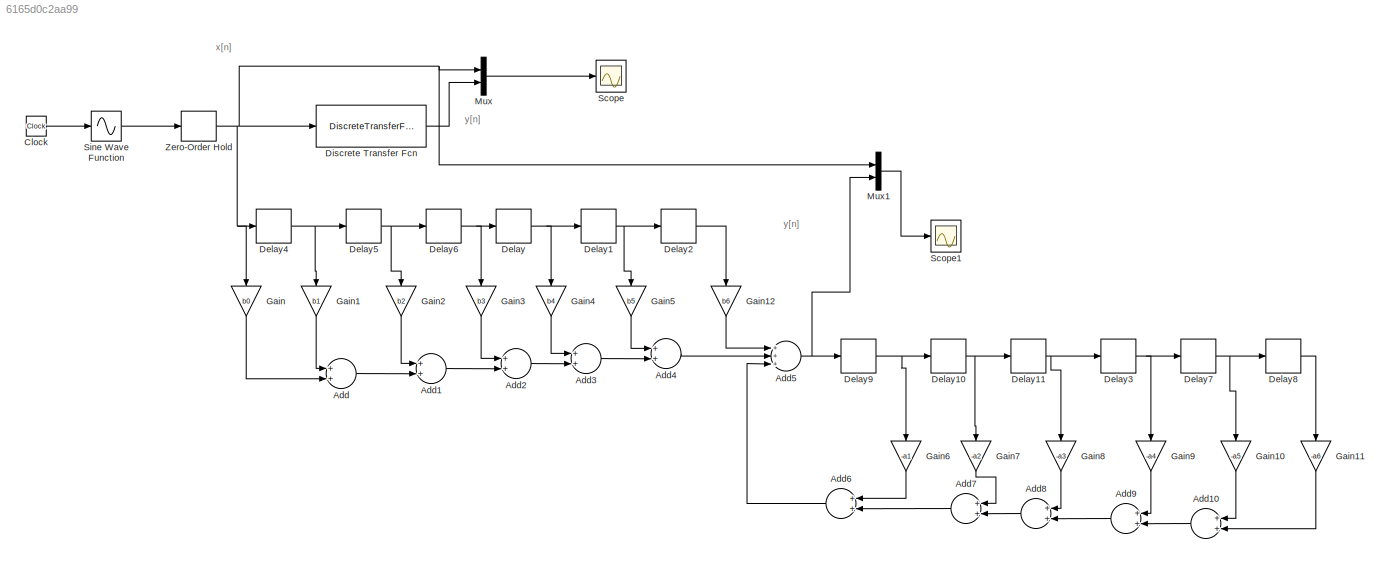
MODEL slx_6165d0c2aa99
KIND model
CONFIG AbsTol = auto
CONFIG EnableMultiTasking = off
CONFIG FixedStep = auto
CONFIG MaxStep = auto
CONFIG MinStep = auto
CONFIG RelTol = 1e-3
CONFIG SampleTimeConstraint = Unconstrained
CONFIG Solver = VariableStepAuto
CONFIG SolverName = VariableStepAuto
CONFIG StartTime = 0.0
CONFIG StopTime = 1
BLOCK [Sum] Add
  InputSameDT = off
  OutDataTypeStr = Inherit: Inherit via internal rule
  Ports = [2, 1]
  SaturateOnIntegerOverflow = off
BLOCK [Sum] Add1
  InputSameDT = off
  OutDataTypeStr = Inherit: Inherit via internal rule
  Ports = [2, 1]
  SaturateOnIntegerOverflow = off
BLOCK [Sum] Add10
  InputSameDT = off
  OutDataTypeStr = Inherit: Inherit via internal rule
  Ports = [2, 1]
  SaturateOnIntegerOverflow = off
BLOCK [Sum] Add2
  InputSameDT = off
  OutDataTypeStr = Inherit: Inherit via internal rule
  Ports = [2, 1]
  SaturateOnIntegerOverflow = off
BLOCK [Sum] Add3
  InputSameDT = off
  OutDataTypeStr = Inherit: Inherit via internal rule
  Ports = [2, 1]
  SaturateOnIntegerOverflow = off
BLOCK [Sum] Add4
  InputSameDT = off
  OutDataTypeStr = Inherit: Inherit via internal rule
  Ports = [2, 1]
  SaturateOnIntegerOverflow = off
BLOCK [Sum] Add5
  InputSameDT = off
  Inputs = +++
  OutDataTypeStr = Inherit: Inherit via internal rule
  Ports = [3, 1]
  SaturateOnIntegerOverflow = off
BLOCK [Sum] Add6
  InputSameDT = off
  OutDataTypeStr = Inherit: Inherit via internal rule
  Ports = [2, 1]
  SaturateOnIntegerOverflow = off
BLOCK [Sum] Add7
  InputSameDT = off
  OutDataTypeStr = Inherit: Inherit via internal rule
  Ports = [2, 1]
  SaturateOnIntegerOverflow = off
BLOCK [Sum] Add8
  InputSameDT = off
  OutDataTypeStr = Inherit: Inherit via internal rule
  Ports = [2, 1]
  SaturateOnIntegerOverflow = off
BLOCK [Sum] Add9
  InputSameDT = off
  OutDataTypeStr = Inherit: Inherit via internal rule
  Ports = [2, 1]
  SaturateOnIntegerOverflow = off
BLOCK [Clock] Clock
BLOCK [Delay] Delay
  DelayLength = 1
  InputPortMap = u0
  Ports = [1, 1]
  SampleTime = 1/500
BLOCK [Delay] Delay1
  DelayLength = 1
  InputPortMap = u0
  Ports = [1, 1]
  SampleTime = 1/500
BLOCK [Delay] Delay10
  DelayLength = 1
  InputPortMap = u0
  Ports = [1, 1]
  SampleTime = 1/500
BLOCK [Delay] Delay11
  DelayLength = 1
  InputPortMap = u0
  Ports = [1, 1]
  SampleTime = 1/500
BLOCK [Delay] Delay2
  DelayLength = 1
  InputPortMap = u0
  Ports = [1, 1]
  SampleTime = 1/500
BLOCK [Delay] Delay3
  DelayLength = 1
  InputPortMap = u0
  Ports = [1, 1]
  SampleTime = 1/500
BLOCK [Delay] Delay4
  DelayLength = 1
  InputPortMap = u0
  Ports = [1, 1]
  SampleTime = 1/500
BLOCK [Delay] Delay5
  DelayLength = 1
  InputPortMap = u0
  Ports = [1, 1]
  SampleTime = 1/500
BLOCK [Delay] Delay6
  DelayLength = 1
  InputPortMap = u0
  Ports = [1, 1]
  SampleTime = 1/500
BLOCK [Delay] Delay7
  DelayLength = 1
  InputPortMap = u0
  Ports = [1, 1]
  SampleTime = 1/500
BLOCK [Delay] Delay8
  DelayLength = 1
  InputPortMap = u0
  Ports = [1, 1]
  SampleTime = 1/500
BLOCK [Delay] Delay9
  DelayLength = 1
  InputPortMap = u0
  Ports = [1, 1]
  SampleTime = 1/500
BLOCK [DiscreteTransferFcn] Discrete Transfer Fcn
  Denominator = [ 1,-5.51498094,12.69112968,-15.59729098,10.79661625,-3.99086913,0.61539821]
  InputPortMap = u0
  Numerator = [4.83825267e-08,2.90295160e-07,7.25737900e-07,9.67650534e-07,7.257379e-07,2.90295160e-07,4.83825267e-08]
  Ports = [1, 1]
BLOCK [Gain] Gain
  Gain = b0
  OutDataTypeStr = Inherit: Inherit via internal rule
  ParamDataTypeStr = Inherit: Inherit via internal rule
  SaturateOnIntegerOverflow = off
BLOCK [Gain] Gain1
  Gain = b1
  OutDataTypeStr = Inherit: Inherit via internal rule
  ParamDataTypeStr = Inherit: Inherit via internal rule
  SaturateOnIntegerOverflow = off
BLOCK [Gain] Gain10
  Gain = -a5
  OutDataTypeStr = Inherit: Inherit via internal rule
  ParamDataTypeStr = Inherit: Inherit via internal rule
  SaturateOnIntegerOverflow = off
BLOCK [Gain] Gain11
  Gain = -a6
  OutDataTypeStr = Inherit: Inherit via internal rule
  ParamDataTypeStr = Inherit: Inherit via internal rule
  SaturateOnIntegerOverflow = off
BLOCK [Gain] Gain12
  Gain = b6
  OutDataTypeStr = Inherit: Inherit via internal rule
  ParamDataTypeStr = Inherit: Inherit via internal rule
  SaturateOnIntegerOverflow = off
BLOCK [Gain] Gain2
  Gain = b2
  OutDataTypeStr = Inherit: Inherit via internal rule
  ParamDataTypeStr = Inherit: Inherit via internal rule
  SaturateOnIntegerOverflow = off
BLOCK [Gain] Gain3
  Gain = b3
  OutDataTypeStr = Inherit: Inherit via internal rule
  ParamDataTypeStr = Inherit: Inherit via internal rule
  SaturateOnIntegerOverflow = off
BLOCK [Gain] Gain4
  Gain = b4
  OutDataTypeStr = Inherit: Inherit via internal rule
  ParamDataTypeStr = Inherit: Inherit via internal rule
  SaturateOnIntegerOverflow = off
BLOCK [Gain] Gain5
  Gain = b5
  OutDataTypeStr = Inherit: Inherit via internal rule
  ParamDataTypeStr = Inherit: Inherit via internal rule
  SaturateOnIntegerOverflow = off
BLOCK [Gain] Gain6
  Gain = -a1
  OutDataTypeStr = Inherit: Inherit via internal rule
  ParamDataTypeStr = Inherit: Inherit via internal rule
  SaturateOnIntegerOverflow = off
BLOCK [Gain] Gain7
  Gain = -a2
  OutDataTypeStr = Inherit: Inherit via internal rule
  ParamDataTypeStr = Inherit: Inherit via internal rule
  SaturateOnIntegerOverflow = off
BLOCK [Gain] Gain8
  Gain = -a3
  OutDataTypeStr = Inherit: Inherit via internal rule
  ParamDataTypeStr = Inherit: Inherit via internal rule
  SaturateOnIntegerOverflow = off
BLOCK [Gain] Gain9
  Gain = -a4
  OutDataTypeStr = Inherit: Inherit via internal rule
  ParamDataTypeStr = Inherit: Inherit via internal rule
  SaturateOnIntegerOverflow = off
BLOCK [Mux] Mux
  DisplayOption = bar
  Inputs = 2
  Ports = [2, 1]
BLOCK [Mux] Mux1
  DisplayOption = bar
  Inputs = 2
  Ports = [2, 1]
BLOCK [Scope] Scope
  Floating = off
  NumInputPorts = 1
  Ports = [1]
  ScopeSpecificationString = Simulink.scopes.TimeScopeBlockCfg('CurrentConfiguration', extmgr.ConfigurationSet(extmgr.Configuration('Core','General UI',true),extmgr.Configuration('Core','Source UI',true),extmgr.Configuration('Sources','WiredSimulink',true),extmgr.Configuration('Visuals','Time Domain',true,'SerializedDisplays',{struct('MinYLimReal','-1','MaxYLimReal','1','YLabelReal','','MinYLimMag','0.00000','MaxYLimMag','0.0...<+1474ch>
BLOCK [Scope] Scope1
  Floating = off
  NumInputPorts = 1
  Ports = [1]
  ScopeSpecificationString = Simulink.scopes.TimeScopeBlockCfg('CurrentConfiguration', extmgr.ConfigurationSet(extmgr.Configuration('Core','General UI',true),extmgr.Configuration('Core','Source UI',true),extmgr.Configuration('Sources','WiredSimulink',true,'DataLoggingVariableName','ScopeData1'),extmgr.Configuration('Visuals','Time Domain',true,'SerializedDisplays',{struct('MinYLimReal','-1','MaxYLimReal','1','YLabelReal','','...<+1494ch>
BLOCK [Sin] Sine Wave Function
  Frequency = 5*(2*pi)
  Ports = [1, 1]
  SampleTime = 0
  TimeSource = Use external signal
BLOCK [ZeroOrderHold] Zero-Order Hold
  SampleTime = 1/500
ANNOTATION (root): x[n]
ANNOTATION (root): y[n]
LINE Add10:1 -> Add9:2
LINE Add1:1 -> Add2:2
LINE Add2:1 -> Add3:2
LINE Add3:1 -> Add4:2
LINE Add4:1 -> Add5:2
NET Add5:1 -> Delay9:1, Mux1:2
LINE Add6:1 -> Add5:3
LINE Add7:1 -> Add6:2
LINE Add8:1 -> Add7:2
LINE Add9:1 -> Add8:2
LINE Add:1 -> Add1:2
LINE Clock:1 -> Sine Wave Function:1
NET Delay10:1 -> Delay11:1, Gain7:1
NET Delay11:1 -> Delay3:1, Gain8:1
NET Delay1:1 -> Delay2:1, Gain5:1
LINE Delay2:1 -> Gain12:1
NET Delay3:1 -> Delay7:1, Gain9:1
NET Delay4:1 -> Delay5:1, Gain1:1
NET Delay5:1 -> Delay6:1, Gain2:1
NET Delay6:1 -> Delay:1, Gain3:1
NET Delay7:1 -> Delay8:1, Gain10:1
LINE Delay8:1 -> Gain11:1
NET Delay9:1 -> Delay10:1, Gain6:1
NET Delay:1 -> Delay1:1, Gain4:1
LINE Discrete Transfer Fcn:1 -> Mux:2
LINE Gain10:1 -> Add10:1
LINE Gain11:1 -> Add10:2
LINE Gain12:1 -> Add5:1
LINE Gain1:1 -> Add:1
LINE Gain2:1 -> Add1:1
LINE Gain3:1 -> Add2:1
LINE Gain4:1 -> Add3:1
LINE Gain5:1 -> Add4:1
LINE Gain6:1 -> Add6:1
LINE Gain7:1 -> Add7:1
LINE Gain8:1 -> Add8:1
LINE Gain9:1 -> Add9:1
LINE Gain:1 -> Add:2
LINE Mux1:1 -> Scope1:1
LINE Mux:1 -> Scope:1
LINE Sine Wave Function:1 -> Zero-Order Hold:1
NET Zero-Order Hold:1 -> Delay4:1, Discrete Transfer Fcn:1, Gain:1, Mux1:1, Mux:1
note: NET lines group one-source signal fan-out (src -> all destinations, sorted); 1:1 wires keep LINE
